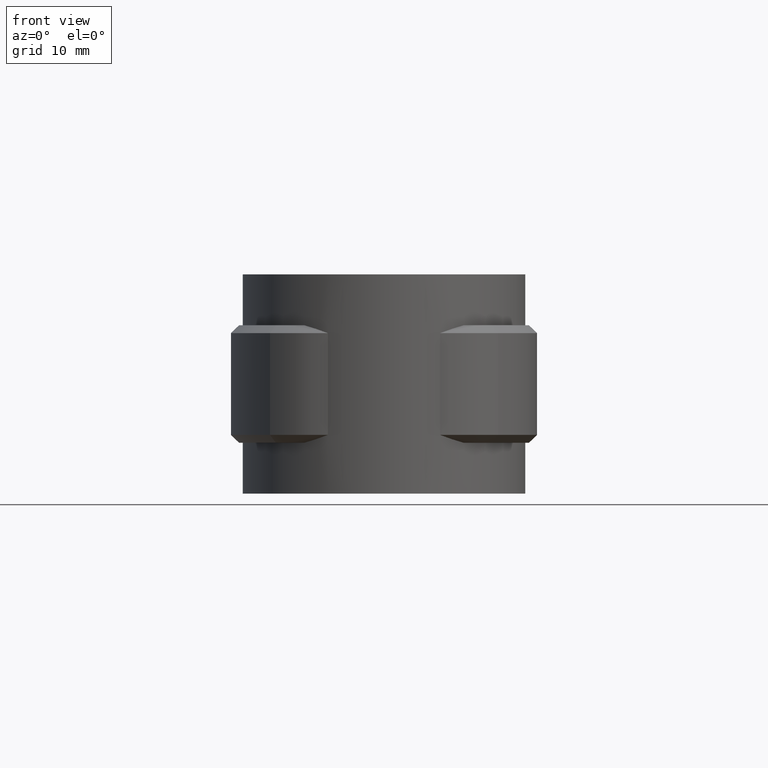
[diagram: clean part render]
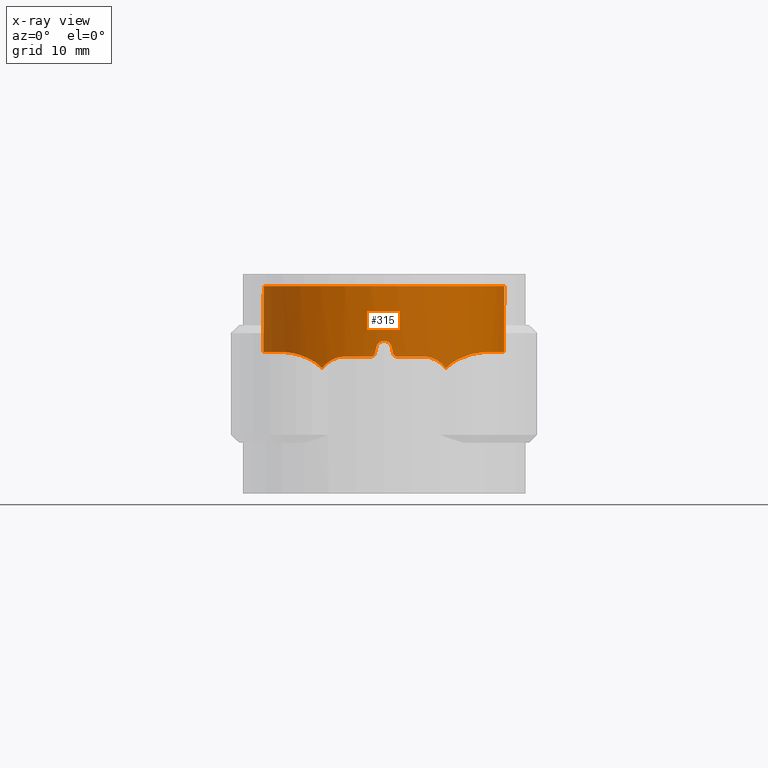
[diagram: x-ray — body ghosted, one internal face saturated and labeled with its STEP entity id]
A machine part, front view, then the same camera in x-ray: the body is ghosted and one INTERNAL B-rep face — a face not visible from any outside direction — is saturated and labeled: STEP entity #315.
In plain terms, the highlighted cylindrical surface (partial cylindrical patch) has radius 15.4 mm, axis along (0, 0, 1).
Its self-contained STEP definition (entity closure, byte-faithful):
#315 = ADVANCED_FACE( '', ( #502 ), #503, .T. );
#502 = FACE_OUTER_BOUND( '', #904, .T. );
#503 = CYLINDRICAL_SURFACE( '', #905, 15.4000000000000 );
#904 = EDGE_LOOP( '', ( #1690, #1691, #1692, #1693, #1694, #1695, #1696, #1697, #1698, #1699, #1700, #1701, #1702, #1703, #1704, #1705 ) );
#905 = AXIS2_PLACEMENT_3D( '', #1706, #1707, #1708 );
#1690 = ORIENTED_EDGE( '', *, *, #3828, .F. );
#1691 = ORIENTED_EDGE( '', *, *, #3829, .F. );
#1692 = ORIENTED_EDGE( '', *, *, #3830, .F. );
#1693 = ORIENTED_EDGE( '', *, *, #3831, .F. );
#1694 = ORIENTED_EDGE( '', *, *, #3832, .F. );
#1695 = ORIENTED_EDGE( '', *, *, #3833, .T. );
#1696 = ORIENTED_EDGE( '', *, *, #3834, .F. );
#1697 = ORIENTED_EDGE( '', *, *, #3835, .F. );
#1698 = ORIENTED_EDGE( '', *, *, #3836, .F. );
#1699 = ORIENTED_EDGE( '', *, *, #3837, .F. );
#1700 = ORIENTED_EDGE( '', *, *, #3838, .F. );
#1701 = ORIENTED_EDGE( '', *, *, #3839, .F. );
#1702 = ORIENTED_EDGE( '', *, *, #3840, .F. );
#1703 = ORIENTED_EDGE( '', *, *, #3841, .F. );
#1704 = ORIENTED_EDGE( '', *, *, #3842, .F. );
#1705 = ORIENTED_EDGE( '', *, *, #3843, .F. );
#1706 = CARTESIAN_POINT( '', ( 0.000000000000000, 0.000000000000000, 0.000000000000000 ) );
#1707 = DIRECTION( '', ( 0.000000000000000, 0.000000000000000, 1.00000000000000 ) );
#1708 = DIRECTION( '', ( 1.00000000000000, -6.12303176911189E-017, 0.000000000000000 ) );
#3828 = EDGE_CURVE( '', #4320, #4321, #4322, .T. );
#3829 = EDGE_CURVE( '', #4323, #4320, #4324, .T. );
#3830 = EDGE_CURVE( '', #4325, #4323, #4326, .T. );
#3831 = EDGE_CURVE( '', #4327, #4325, #4328, .T. );
#3832 = EDGE_CURVE( '', #4329, #4327, #4330, .F. );
#3833 = EDGE_CURVE( '', #4329, #4331, #4332, .T. );
#3834 = EDGE_CURVE( '', #4333, #4331, #4334, .T. );
#3835 = EDGE_CURVE( '', #4335, #4333, #4336, .T. );
#3836 = EDGE_CURVE( '', #4337, #4335, #4338, .T. );
#3837 = EDGE_CURVE( '', #4339, #4337, #4340, .T. );
#3838 = EDGE_CURVE( '', #4341, #4339, #4342, .T. );
#3839 = EDGE_CURVE( '', #4343, #4341, #4344, .T. );
#3840 = EDGE_CURVE( '', #4345, #4343, #4346, .T. );
#3841 = EDGE_CURVE( '', #4347, #4345, #4348, .T. );
#3842 = EDGE_CURVE( '', #4349, #4347, #4350, .T. );
#3843 = EDGE_CURVE( '', #4321, #4349, #4351, .T. );
#4320 = VERTEX_POINT( '', #5142 );
#4321 = VERTEX_POINT( '', #5143 );
#4322 = B_SPLINE_CURVE_WITH_KNOTS( '', 3, ( #5144, #5145, #5146, #5147, #5148, #5149, #5150, #5151, #5152, #5153 ), .UNSPECIFIED., .F., .F., ( 4, 2, 2, 2, 4 ), ( 0.00791598964132195, 0.00881632444649015, 0.00971665925165835, 0.0106169940568265, 0.0115173288619947 ), .UNSPECIFIED. );
#4323 = VERTEX_POINT( '', #5154 );
#4324 = B_SPLINE_CURVE_WITH_KNOTS( '', 3, ( #5155, #5156, #5157, #5158, #5159, #5160, #5161, #5162, #5163, #5164, #5165, #5166, #5167, #5168 ), .UNSPECIFIED., .F., .F., ( 4, 2, 2, 2, 2, 2, 4 ), ( 0.000000000000000, 0.00173168273084339, 0.00346336546168679, 0.00432920682710848, 0.00519504819253018, 0.00606088955795188, 0.00692673092337358 ), .UNSPECIFIED. );
#4325 = VERTEX_POINT( '', #5169 );
#4326 = B_SPLINE_CURVE_WITH_KNOTS( '', 3, ( #5170, #5171, #5172, #5173, #5174, #5175, #5176, #5177, #5178, #5179, #5180, #5181, #5182, #5183, #5184, #5185, #5186, #5187, #5188, #5189, #5190, #5191, #5192, #5193, #5194, #5195, #5196, #5197 ), .UNSPECIFIED., .F., .F., ( 4, 2, 2, 2, 2, 2, 2, 2, 2, 2, 2, 2, 2, 4 ), ( 0.000000000000000, 0.00341998212533285, 0.00512997318799927, 0.00683996425066569, 0.00854995531333212, 0.0102599463759985, 0.0136799285013314, 0.0153899195639978, 0.0170999106266642, 0.0188099016893306, 0.0205198927519971, 0.0239398748773299, 0.0256498659399963, 0.0273598570026628 ), .UNSPECIFIED. );
#4327 = VERTEX_POINT( '', #5198 );
#4328 = LINE( '', #5199, #5200 );
#4329 = VERTEX_POINT( '', #5201 );
#4330 = CIRCLE( '', #5202, 15.4000000000000 );
#4331 = VERTEX_POINT( '', #5203 );
#4332 = LINE( '', #5204, #5205 );
#4333 = VERTEX_POINT( '', #5206 );
#4334 = B_SPLINE_CURVE_WITH_KNOTS( '', 3, ( #5207, #5208, #5209, #5210, #5211, #5212, #5213, #5214, #5215, #5216, #5217, #5218, #5219, #5220, #5221, #5222, #5223, #5224, #5225, #5226, #5227, #5228, #5229, #5230, #5231, #5232, #5233, #5234 ), .UNSPECIFIED., .F., .F., ( 4, 2, 2, 2, 2, 2, 2, 2, 2, 2, 2, 2, 2, 4 ), ( 0.000000000000000, 0.00341998115958763, 0.00512997173938145, 0.00683996231917526, 0.00854995289896908, 0.0102599434787629, 0.0136799246383505, 0.0153899152181443, 0.0170999057979382, 0.0188098963777320, 0.0205198869575258, 0.0239398681171134, 0.0256498586969072, 0.0273598492767011 ), .UNSPECIFIED. );
#4335 = VERTEX_POINT( '', #5235 );
#4336 = B_SPLINE_CURVE_WITH_KNOTS( '', 3, ( #5236, #5237, #5238, #5239, #5240, #5241, #5242, #5243, #5244, #5245, #5246, #5247, #5248, #5249, #5250, #5251 ), .UNSPECIFIED., .F., .F., ( 4, 2, 2, 2, 2, 2, 2, 4 ), ( 0.0114627749049259, 0.0123276574817837, 0.0131925400586415, 0.0140574226354994, 0.0149223052123572, 0.0157871877892150, 0.0166520703660729, 0.0183818355197885 ), .UNSPECIFIED. );
#4337 = VERTEX_POINT( '', #5252 );
#4338 = B_SPLINE_CURVE_WITH_KNOTS( '', 3, ( #5253, #5254, #5255, #5256, #5257, #5258, #5259, #5260, #5261, #5262 ), .UNSPECIFIED., .F., .F., ( 4, 2, 2, 2, 4 ), ( 3.12731722069275E-018, 0.000903907391184068, 0.00180781478236813, 0.00271172217355220, 0.00361562956473626 ), .UNSPECIFIED. );
#4339 = VERTEX_POINT( '', #5263 );
#4340 = CIRCLE( '', #5264, 15.4000000000000 );
#4341 = VERTEX_POINT( '', #5265 );
#4342 = B_SPLINE_CURVE_WITH_KNOTS( '', 3, ( #5266, #5267, #5268, #5269, #5270, #5271 ), .UNSPECIFIED., .F., .F., ( 4, 2, 4 ), ( 4.33680868994202E-019, 0.000336644101429869, 0.000673288202859737 ), .UNSPECIFIED. );
#4343 = VERTEX_POINT( '', #5272 );
#4344 = ELLIPSE( '', #5273, 70.1556271315222, 15.4000000000000 );
#4345 = VERTEX_POINT( '', #5274 );
#4346 = B_SPLINE_CURVE_WITH_KNOTS( '', 3, ( #5275, #5276, #5277, #5278, #5279, #5280, #5281, #5282, #5283, #5284 ), .UNSPECIFIED., .F., .F., ( 4, 2, 2, 2, 4 ), ( 0.000000000000000, 0.000671747591232753, 0.00134349518246551, 0.00201524277369826, 0.00268699036493101 ), .UNSPECIFIED. );
#4347 = VERTEX_POINT( '', #5285 );
#4348 = ELLIPSE( '', #5286, 70.1555913435267, 15.4000000000000 );
#4349 = VERTEX_POINT( '', #5287 );
#4350 = B_SPLINE_CURVE_WITH_KNOTS( '', 3, ( #5288, #5289, #5290, #5291, #5292, #5293 ), .UNSPECIFIED., .F., .F., ( 4, 2, 4 ), ( 8.20849171219253E-018, 0.000336627574674889, 0.000673255149349771 ), .UNSPECIFIED. );
#4351 = CIRCLE( '', #5294, 15.4000000000000 );
#5142 = CARTESIAN_POINT( '', ( 7.87700636388655, -13.2330182023337, -10.5068029745768 ) );
#5143 = CARTESIAN_POINT( '', ( 5.00000000000000, -14.5657131648265, -9.00000000000000 ) );
#5144 = CARTESIAN_POINT( '', ( 7.87700636388652, -13.2330182023336, -10.5068029745767 ) );
#5145 = CARTESIAN_POINT( '', ( 7.71391363314007, -13.3300997946317, -10.2713928177903 ) );
#5146 = CARTESIAN_POINT( '', ( 7.52285967265705, -13.4396175297928, -10.0580327883330 ) );
#5147 = CARTESIAN_POINT( '', ( 7.10361326660326, -13.6658485122638, -9.68880167626919 ) );
#5148 = CARTESIAN_POINT( '', ( 6.87051135587928, -13.7851517390805, -9.52873784981386 ) );
#5149 = CARTESIAN_POINT( '', ( 6.37824971932184, -14.0197098856828, -9.27081446665085 ) );
#5150 = CARTESIAN_POINT( '', ( 6.11896626058688, -14.1352649269198, -9.17172507504950 ) );
#5151 = CARTESIAN_POINT( '', ( 5.57174893635244, -14.3597728548423, -9.03552274907657 ) );
#5152 = CARTESIAN_POINT( '', ( 5.28829972414884, -14.4667479714005, -8.99999999999998 ) );
#5153 = CARTESIAN_POINT( '', ( 5.00000000000000, -14.5657131648265, -8.99999999999997 ) );
#5154 = CARTESIAN_POINT( '', ( 12.6274120051663, -8.81524055552550, -8.45123182622543 ) );
#5155 = CARTESIAN_POINT( '', ( 12.6274120051663, -8.81524055552550, -8.45123182622543 ) );
#5156 = CARTESIAN_POINT( '', ( 12.2921835087103, -9.29543940137202, -8.46640589875317 ) );
#5157 = CARTESIAN_POINT( '', ( 11.9345917271948, -9.74949266599847, -8.51214687201749 ) );
#5158 = CARTESIAN_POINT( '', ( 11.1785738592952, -10.6078543264634, -8.66934439407290 ) );
#5159 = CARTESIAN_POINT( '', ( 10.7801391596403, -11.0120804295089, -8.78116952376867 ) );
#5160 = CARTESIAN_POINT( '', ( 10.1551330611052, -11.5806995226116, -9.01465162548256 ) );
#5161 = CARTESIAN_POINT( '', ( 9.94253435288116, -11.7635399192514, -9.10364407148822 ) );
#5162 = CARTESIAN_POINT( '', ( 9.51839311645742, -12.1092961509172, -9.30489986919364 ) );
#5163 = CARTESIAN_POINT( '', ( 9.30582768364359, -12.2731543091292, -9.41742948314349 ) );
#5164 = CARTESIAN_POINT( '', ( 8.88264050815759, -12.5828233388298, -9.67168894022724 ) );
#5165 = CARTESIAN_POINT( '', ( 8.67068931918932, -12.7294751156650, -9.81433545969121 ) );
#5166 = CARTESIAN_POINT( '', ( 8.26011978492008, -12.9996465770809, -10.1336652816724 ) );
#5167 = CARTESIAN_POINT( '', ( 8.06230731954149, -13.1227170764218, -10.3093051029673 ) );
#5168 = CARTESIAN_POINT( '', ( 7.87700636388628, -13.2330182023337, -10.5068029745765 ) );
#5169 = CARTESIAN_POINT( '', ( 5.95833333333334, 14.2006430801175, -8.45319646491126 ) );
#5170 = CARTESIAN_POINT( '', ( 5.95833333333334, 14.2006430801175, -8.45319646491129 ) );
#5171 = CARTESIAN_POINT( '', ( 7.02258857492107, 13.7541008041550, -8.45487795665789 ) );
#5172 = CARTESIAN_POINT( '', ( 8.01860178360296, 13.1972457551556, -8.45534853088447 ) );
#5173 = CARTESIAN_POINT( '', ( 9.41332867223213, 12.2014573240259, -8.45327878405263 ) );
#5174 = CARTESIAN_POINT( '', ( 9.86365149342150, 11.8405721295307, -8.45225625596894 ) );
#5175 = CARTESIAN_POINT( '', ( 10.7193355037959, 11.0718840083952, -8.45103312457521 ) );
#5176 = CARTESIAN_POINT( '', ( 11.1221666684703, 10.6668390790221, -8.45115105739451 ) );
#5177 = CARTESIAN_POINT( '', ( 11.8793245513676, 9.81660305514381, -8.45202092970010 ) );
#5178 = CARTESIAN_POINT( '', ( 12.2336476014598, 9.37140888677848, -8.45262953602700 ) );
#5179 = CARTESIAN_POINT( '', ( 12.8934693814688, 8.44060930673962, -8.45325263247384 ) );
#5180 = CARTESIAN_POINT( '', ( 13.2002425773149, 7.95265342036169, -8.45326284490383 ) );
#5181 = CARTESIAN_POINT( '', ( 14.0352308622093, 6.44179297570785, -8.45235870297212 ) );
#5182 = CARTESIAN_POINT( '', ( 14.4710174486937, 5.38987714239228, -8.45070154326673 ) );
#5183 = CARTESIAN_POINT( '', ( 14.9481487368161, 3.74674922361253, -8.45203183203909 ) );
#5184 = CARTESIAN_POINT( '', ( 15.0778698080782, 3.18579389180562, -8.45272575783565 ) );
#5185 = CARTESIAN_POINT( '', ( 15.2736458091991, 2.05114220997874, -8.45353397626926 ) );
#5186 = CARTESIAN_POINT( '', ( 15.3389737376012, 1.48327355388032, -8.45364108899972 ) );
#5187 = CARTESIAN_POINT( '', ( 15.4066272505933, 0.346485958933440, -8.45315387062256 ) );
#5188 = CARTESIAN_POINT( '', ( 15.4089471624124, -0.222433075056289, -8.45256123293249 ) );
#5189 = CARTESIAN_POINT( '', ( 15.3503068302420, -1.36132631808884, -8.45147141467651 ) );
#5190 = CARTESIAN_POINT( '', ( 15.2890404182553, -1.93314060817786, -8.45104877842965 ) );
#5191 = CARTESIAN_POINT( '', ( 15.0083466307506, -3.63822614736431, -8.45194638195861 ) );
#5192 = CARTESIAN_POINT( '', ( 14.6985463037198, -4.73420338375863, -8.45374932821839 ) );
#5193 = CARTESIAN_POINT( '', ( 14.0554696654127, -6.31892069621153, -8.45321234892426 ) );
#5194 = CARTESIAN_POINT( '', ( 13.8106599874058, -6.83801053354464, -8.45262425036877 ) );
#5195 = CARTESIAN_POINT( '', ( 13.2604374484016, -7.85197529425727, -8.45143870822935 ) );
#5196 = CARTESIAN_POINT( '', ( 12.9577374254450, -8.34206513264670, -8.45085167244468 ) );
#5197 = CARTESIAN_POINT( '', ( 12.6274120051663, -8.81524055552550, -8.45123182622542 ) );
#5198 = CARTESIAN_POINT( '', ( 5.95833333333333, 14.2006430801175, 0.000000000000000 ) );
#5199 = CARTESIAN_POINT( '', ( 5.95833333333334, 14.2006430801175, 0.000000000000000 ) );
#5200 = VECTOR( '', #7694, 1000.00000000000 );
#5201 = CARTESIAN_POINT( '', ( -5.95833333333334, 14.2006430801175, 0.000000000000000 ) );
#5202 = AXIS2_PLACEMENT_3D( '', #7695, #7696, #7697 );
#5203 = CARTESIAN_POINT( '', ( -5.95833333333333, 14.2006430801175, -8.45319646491129 ) );
#5204 = CARTESIAN_POINT( '', ( -5.95833333333333, 14.2006430801175, 0.000000000000000 ) );
#5205 = VECTOR( '', #7698, 1000.00000000000 );
#5206 = CARTESIAN_POINT( '', ( -12.6274120051665, -8.81524055552555, -8.45123182622562 ) );
#5207 = CARTESIAN_POINT( '', ( -12.6274120051663, -8.81524055552550, -8.45123182622542 ) );
#5208 = CARTESIAN_POINT( '', ( -13.2880625537878, -7.86889012795221, -8.45047151899991 ) );
#5209 = CARTESIAN_POINT( '', ( -13.8320657418724, -6.86580128022411, -8.45301130788258 ) );
#5210 = CARTESIAN_POINT( '', ( -14.4783490337546, -5.27861030324547, -8.45357253429532 ) );
#5211 = CARTESIAN_POINT( '', ( -14.6659697177332, -4.73287455637441, -8.45335112496146 ) );
#5212 = CARTESIAN_POINT( '', ( -14.9781308831095, -3.62579157926694, -8.45238263896636 ) );
#5213 = CARTESIAN_POINT( '', ( -15.1020078310141, -3.06812760949859, -8.45164909205877 ) );
#5214 = CARTESIAN_POINT( '', ( -15.2873078671033, -1.94480480577863, -8.45105211814681 ) );
#5215 = CARTESIAN_POINT( '', ( -15.3487262067477, -1.37914537117791, -8.45145621025229 ) );
#5216 = CARTESIAN_POINT( '', ( -15.4086970316327, -0.239778881260354, -8.45254284321980 ) );
#5217 = CARTESIAN_POINT( '', ( -15.4070699653256, 0.336595363875858, -8.45314819376114 ) );
#5218 = CARTESIAN_POINT( '', ( -15.3049524540745, 2.05981450626105, -8.45389105113858 ) );
#5219 = CARTESIAN_POINT( '', ( -15.1108416346634, 3.18175797266485, -8.45250043596708 ) );
#5220 = CARTESIAN_POINT( '', ( -14.6355907588763, 4.82542877004916, -8.45115306269195 ) );
#5221 = CARTESIAN_POINT( '', ( -14.4453125376356, 5.36883487297288, -8.45119115142090 ) );
#5222 = CARTESIAN_POINT( '', ( -14.0041384417046, 6.43238281733860, -8.45205742692973 ) );
#5223 = CARTESIAN_POINT( '', ( -13.7557451121938, 6.94720758233693, -8.45266000126185 ) );
#5224 = CARTESIAN_POINT( '', ( -13.2051545921950, 7.94406123969046, -8.45325885144637 ) );
#5225 = CARTESIAN_POINT( '', ( -12.9029525509172, 8.42608717518106, -8.45325661037708 ) );
#5226 = CARTESIAN_POINT( '', ( -12.2445074777150, 9.35719863223776, -8.45264461782251 ) );
#5227 = CARTESIAN_POINT( '', ( -11.8870226966692, 9.80767465812644, -8.45203119249943 ) );
#5228 = CARTESIAN_POINT( '', ( -10.7382174158235, 11.0985517025260, -8.45070713265521 ) );
#5229 = CARTESIAN_POINT( '', ( -9.89046554947290, 11.8591160122652, -8.45255757031076 ) );
#5230 = CARTESIAN_POINT( '', ( -8.49977279143537, 12.8545263560504, -8.45464090099667 ) );
#5231 = CARTESIAN_POINT( '', ( -8.01536757478159, 13.1623174372788, -8.45502016486444 ) );
#5232 = CARTESIAN_POINT( '', ( -7.00828448173800, 13.7250379344315, -8.45471785828141 ) );
#5233 = CARTESIAN_POINT( '', ( -6.49045992937246, 13.9773723721048, -8.45403720916550 ) );
#5234 = CARTESIAN_POINT( '', ( -5.95833333333334, 14.2006430801175, -8.45319646491128 ) );
#5235 = CARTESIAN_POINT( '', ( -7.87700636388640, -13.2330182023336, -10.5068029745764 ) );
#5236 = CARTESIAN_POINT( '', ( -7.87700636388637, -13.2330182023336, -10.5068029745764 ) );
#5237 = CARTESIAN_POINT( '', ( -8.06328749176425, -13.1221336250339, -10.3082604136557 ) );
#5238 = CARTESIAN_POINT( '', ( -8.26169023353060, -12.9986058602927, -10.1324669438878 ) );
#5239 = CARTESIAN_POINT( '', ( -8.66847515869257, -12.7309394095322, -9.81603449562980 ) );
#5240 = CARTESIAN_POINT( '', ( -8.87768020061597, -12.5863404403090, -9.67487813626119 ) );
#5241 = CARTESIAN_POINT( '', ( -9.30228234473856, -12.2758590168889, -9.41935479486325 ) );
#5242 = CARTESIAN_POINT( '', ( -9.51641289651036, -12.1108209602823, -9.30595199782985 ) );
#5243 = CARTESIAN_POINT( '', ( -9.93847682772324, -11.7669357563339, -9.10545846183769 ) );
#5244 = CARTESIAN_POINT( '', ( -10.1475279674672, -11.5872898890611, -9.01779370096185 ) );
#5245 = CARTESIAN_POINT( '', ( -10.5599813586691, -11.2126894422448, -8.86312616278086 ) );
#5246 = CARTESIAN_POINT( '', ( -10.7633923906275, -11.0177349555489, -8.79614543878865 ) );
#5247 = CARTESIAN_POINT( '', ( -11.1633779321647, -10.6122614201216, -8.68041910018486 ) );
#5248 = CARTESIAN_POINT( '', ( -11.3605801225952, -10.4009954121077, -8.63163149610047 ) );
#5249 = CARTESIAN_POINT( '', ( -11.9338215246101, -9.75078709424073, -8.51204931449251 ) );
#5250 = CARTESIAN_POINT( '', ( -12.2927691286990, -9.29460052864596, -8.46637939074362 ) );
#5251 = CARTESIAN_POINT( '', ( -12.6274120051663, -8.81524055552550, -8.45123182622542 ) );
#5252 = CARTESIAN_POINT( '', ( -5.00000000000005, -14.5657131648265, -9.00000000000000 ) );
#5253 = CARTESIAN_POINT( '', ( -5.00000000000005, -14.5657131648265, -8.99999999999997 ) );
#5254 = CARTESIAN_POINT( '', ( -5.28927589066162, -14.4664128808692, -8.99999999999997 ) );
#5255 = CARTESIAN_POINT( '', ( -5.56959324103063, -14.3605777458060, -9.03528937364309 ) );
#5256 = CARTESIAN_POINT( '', ( -6.11404145059442, -14.1373639411414, -9.17020003138690 ) );
#5257 = CARTESIAN_POINT( '', ( -6.38009367968582, -14.0188746272645, -9.27157851841220 ) );
#5258 = CARTESIAN_POINT( '', ( -6.87267371769108, -13.7840776676093, -9.53007458434468 ) );
#5259 = CARTESIAN_POINT( '', ( -7.10294912217172, -13.6662437844767, -9.68795477835338 ) );
#5260 = CARTESIAN_POINT( '', ( -7.52719021542074, -13.4372434996834, -10.0621109635363 ) );
#5261 = CARTESIAN_POINT( '', ( -7.71445619542599, -13.3297768322876, -10.2721759592104 ) );
#5262 = CARTESIAN_POINT( '', ( -7.87700636388640, -13.2330182023336, -10.5068029745764 ) );
#5263 = CARTESIAN_POINT( '', ( -1.65000000000003, -15.3113519977826, -9.00000000000000 ) );
#5264 = AXIS2_PLACEMENT_3D( '', #7699, #7700, #7701 );
#5265 = CARTESIAN_POINT( '', ( -1.16219512100914, -15.3560835664795, -8.60975609337373 ) );
#5266 = CARTESIAN_POINT( '', ( -1.16219512100915, -15.3560835664795, -8.60975609337372 ) );
#5267 = CARTESIAN_POINT( '', ( -1.18717937517000, -15.3541926821169, -8.72079722742816 ) );
#5268 = CARTESIAN_POINT( '', ( -1.24936848231226, -15.3494953912657, -8.81996752986294 ) );
#5269 = CARTESIAN_POINT( '', ( -1.42680015631120, -15.3340200757998, -8.96159144587901 ) );
#5270 = CARTESIAN_POINT( '', ( -1.53683719770915, -15.3235467813527, -8.99999999999994 ) );
#5271 = CARTESIAN_POINT( '', ( -1.65000000000003, -15.3113519977826, -8.99999999999994 ) );
#5272 = CARTESIAN_POINT( '', ( -0.975610000000025, -15.3690658508544, -7.78048800000004 ) );
#5273 = AXIS2_PLACEMENT_3D( '', #7702, #7703, #7704 );
#5274 = CARTESIAN_POINT( '', ( 0.975609757981813, -15.3690658662175, -7.78048781325256 ) );
#5275 = CARTESIAN_POINT( '', ( 0.975609757981816, -15.3690658662175, -7.78048781325256 ) );
#5276 = CARTESIAN_POINT( '', ( 0.925753406053711, -15.3722306872848, -7.55890411705046 ) );
#5277 = CARTESIAN_POINT( '', ( 0.801992475741268, -15.3801262104393, -7.36098177879006 ) );
#5278 = CARTESIAN_POINT( '', ( 0.447465273987303, -15.3945200967345, -7.07733481194490 ) );
#5279 = CARTESIAN_POINT( '', ( 0.227142498445294, -15.4000000278448, -6.99999959047136 ) );
#5280 = CARTESIAN_POINT( '', ( -0.227146274115762, -15.3999999721550, -7.00000040266473 ) );
#5281 = CARTESIAN_POINT( '', ( -0.447545196087218, -15.3945172847983, -7.07738469991271 ) );
#5282 = CARTESIAN_POINT( '', ( -0.801987614786720, -15.3801259747839, -7.36099162797383 ) );
#5283 = CARTESIAN_POINT( '', ( -0.925753673264707, -15.3722306711108, -7.55890421771277 ) );
#5284 = CARTESIAN_POINT( '', ( -0.975610000000025, -15.3690658508544, -7.78048800000004 ) );
#5285 = CARTESIAN_POINT( '', ( 1.16219499999999, -15.3560835756379, -8.60975599999999 ) );
#5286 = AXIS2_PLACEMENT_3D( '', #7705, #7706, #7707 );
#5287 = CARTESIAN_POINT( '', ( 1.64999999999995, -15.3113519977826, -9.00000000000000 ) );
#5288 = CARTESIAN_POINT( '', ( 1.64999999999995, -15.3113519977826, -8.99999999999995 ) );
#5289 = CARTESIAN_POINT( '', ( 1.53683714082748, -15.3235467874825, -9.00000000048564 ) );
#5290 = CARTESIAN_POINT( '', ( 1.42679809437822, -15.3340202109143, -8.96158695408910 ) );
#5291 = CARTESIAN_POINT( '', ( 1.24938589688266, -15.3494939171141, -8.81998434749902 ) );
#5292 = CARTESIAN_POINT( '', ( 1.18717927489081, -15.3541926899043, -8.72079722396234 ) );
#5293 = CARTESIAN_POINT( '', ( 1.16219499999999, -15.3560835756379, -8.60975599999999 ) );
#5294 = AXIS2_PLACEMENT_3D( '', #7708, #7709, #7710 );
#7694 = DIRECTION( '', ( 0.000000000000000, 0.000000000000000, -1.00000000000000 ) );
#7695 = CARTESIAN_POINT( '', ( 0.000000000000000, 0.000000000000000, 0.000000000000000 ) );
#7696 = DIRECTION( '', ( 0.000000000000000, 0.000000000000000, -1.00000000000000 ) );
#7697 = DIRECTION( '', ( -1.00000000000000, 0.000000000000000, 0.000000000000000 ) );
#7698 = DIRECTION( '', ( 0.000000000000000, 0.000000000000000, -1.00000000000000 ) );
#7699 = CARTESIAN_POINT( '', ( 0.000000000000000, 0.000000000000000, -9.00000000000000 ) );
#7700 = DIRECTION( '', ( 6.12303176911189E-017, -3.05720745347993E-016, -1.00000000000000 ) );
#7701 = DIRECTION( '', ( 0.000000000000000, 1.00000000000000, -3.05720745347993E-016 ) );
#7702 = CARTESIAN_POINT( '', ( 0.000000000000000, 0.000000000000000, -3.44443890776447 ) );
#7703 = DIRECTION( '', ( 0.975609806487711, -1.18038009681476E-016, -0.219511971165610 ) );
#7704 = DIRECTION( '', ( -0.219511971165610, 2.65585237103421E-017, -0.975609806487711 ) );
#7705 = CARTESIAN_POINT( '', ( 0.000000000000000, 0.000000000000000, -3.44444212055030 ) );
#7706 = DIRECTION( '', ( -0.975609781292647, -1.61807527429124E-017, -0.219512083143762 ) );
#7707 = DIRECTION( '', ( 0.219512083143762, 3.64066741594651E-018, -0.975609781292647 ) );
#7708 = CARTESIAN_POINT( '', ( 0.000000000000000, 0.000000000000000, -9.00000000000000 ) );
#7709 = DIRECTION( '', ( 6.12303176911189E-017, -3.05720745347993E-016, -1.00000000000000 ) );
#7710 = DIRECTION( '', ( 0.000000000000000, 1.00000000000000, -3.05720745347993E-016 ) );